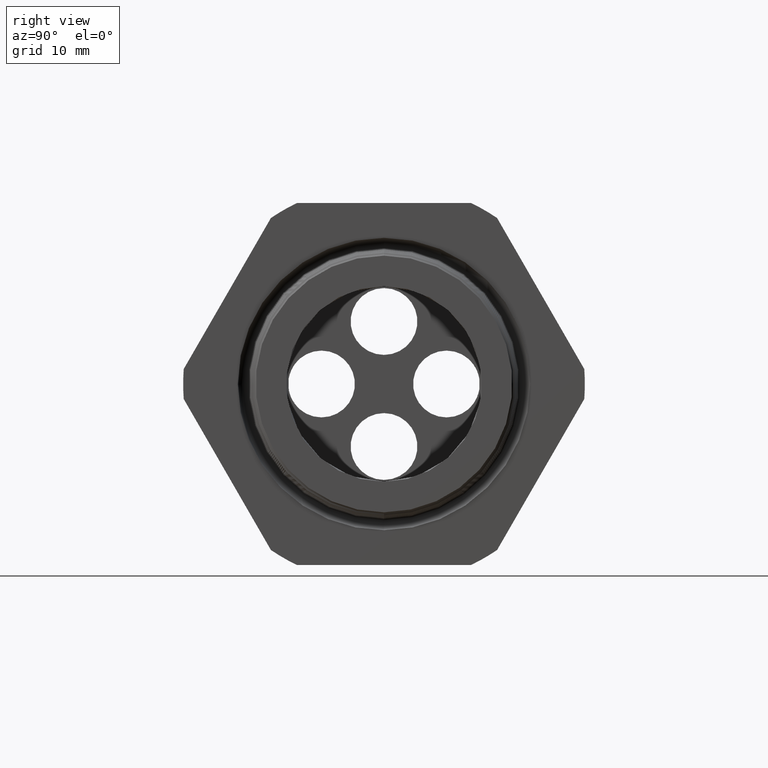
[diagram: clean part render]
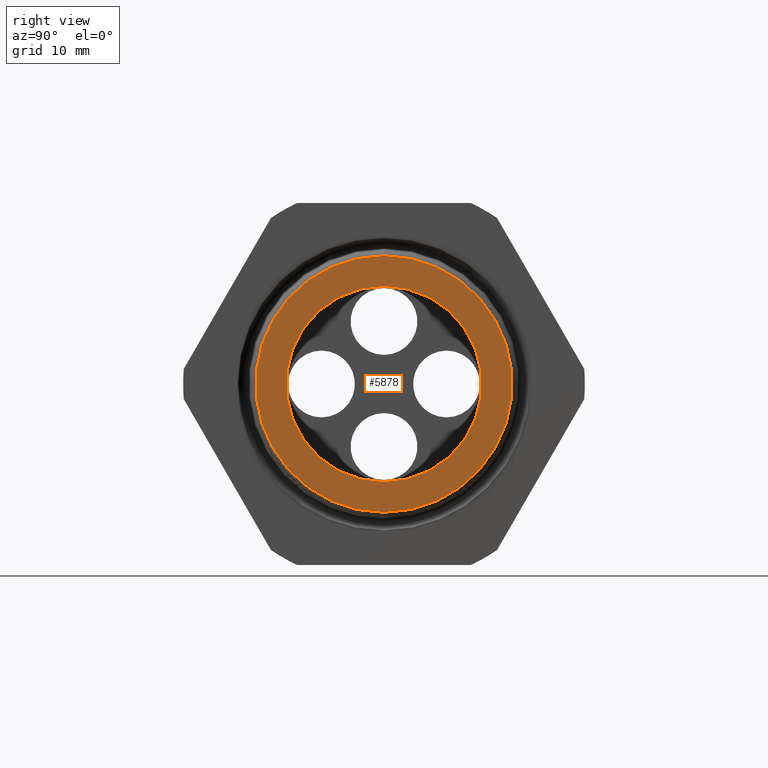
[diagram: same view with one face highlighted and labeled with its STEP entity id]
A machine part, right view. The second image highlights one B-rep face of the part: STEP entity #5878.
In plain terms, the highlighted planar face has unit normal (1, 0, 0).
Its self-contained STEP definition (entity closure, byte-faithful):
#545 = VERTEX_POINT ( 'NONE', #2328 ) ;
#596 = EDGE_CURVE ( 'NONE', #671, #545, #2447, .T. ) ;
#671 = VERTEX_POINT ( 'NONE', #2539 ) ;
#2328 = CARTESIAN_POINT ( 'NONE',  ( 0.2400000000000001000, 0.0000000000000000000, 0.4609698799149832800 ) ) ;
#2443 = DIRECTION ( 'NONE',  ( 0.0000000000000000000, 0.0000000000000000000, -1.000000000000000000 ) ) ;
#2444 = DIRECTION ( 'NONE',  ( 1.000000000000000000, 0.0000000000000000000, 0.0000000000000000000 ) ) ;
#2445 = CARTESIAN_POINT ( 'NONE',  ( 0.2400000000000001000, 0.0000000000000000000, 0.0000000000000000000 ) ) ;
#2446 = AXIS2_PLACEMENT_3D ( 'NONE', #2445, #2444, #2443 ) ;
#2447 = CIRCLE ( 'NONE', #2446, 0.4609698799149832800 ) ;
#2539 = CARTESIAN_POINT ( 'NONE',  ( 0.2400000000000001000, 5.677119249336221900E-017, -0.4609698799149832800 ) ) ;
#3432 = VERTEX_POINT ( 'NONE', #4004 ) ;
#3434 = EDGE_CURVE ( 'NONE', #3436, #3432, #4003, .T. ) ;
#3436 = VERTEX_POINT ( 'NONE', #3998 ) ;
#3998 = CARTESIAN_POINT ( 'NONE',  ( 0.2400000000000001000, 0.0000000000000000000, 0.3513380394677680400 ) ) ;
#3999 = DIRECTION ( 'NONE',  ( 0.0000000000000000000, 0.0000000000000000000, -1.000000000000000000 ) ) ;
#4000 = DIRECTION ( 'NONE',  ( 1.000000000000000000, 0.0000000000000000000, 0.0000000000000000000 ) ) ;
#4001 = CARTESIAN_POINT ( 'NONE',  ( 0.2400000000000001000, 0.0000000000000000000, 0.0000000000000000000 ) ) ;
#4002 = AXIS2_PLACEMENT_3D ( 'NONE', #4001, #4000, #3999 ) ;
#4003 = CIRCLE ( 'NONE', #4002, 0.3513380394677680400 ) ;
#4004 = CARTESIAN_POINT ( 'NONE',  ( 0.2400000000000001000, 4.325073095751094600E-017, -0.3513380394677680400 ) ) ;
#4768 = DIRECTION ( 'NONE',  ( 0.0000000000000000000, 0.0000000000000000000, -1.000000000000000000 ) ) ;
#4769 = DIRECTION ( 'NONE',  ( 1.000000000000000000, 0.0000000000000000000, 0.0000000000000000000 ) ) ;
#4770 = CARTESIAN_POINT ( 'NONE',  ( 0.2400000000000001000, 0.3513380394677680400, 0.0000000000000000000 ) ) ;
#4771 = AXIS2_PLACEMENT_3D ( 'NONE', #4770, #4769, #4768 ) ;
#4772 = PLANE ( 'NONE',  #4771 ) ;
#4774 = FACE_BOUND ( 'NONE', #5861, .T. ) ;
#4775 = FACE_OUTER_BOUND ( 'NONE', #5866, .T. ) ;
#4776 = DIRECTION ( 'NONE',  ( 0.0000000000000000000, 0.0000000000000000000, -1.000000000000000000 ) ) ;
#4777 = DIRECTION ( 'NONE',  ( 1.000000000000000000, 0.0000000000000000000, 0.0000000000000000000 ) ) ;
#4778 = CARTESIAN_POINT ( 'NONE',  ( 0.2400000000000001000, 0.0000000000000000000, 0.0000000000000000000 ) ) ;
#4779 = AXIS2_PLACEMENT_3D ( 'NONE', #4778, #4777, #4776 ) ;
#4780 = CIRCLE ( 'NONE', #4779, 0.4609698799149832800 ) ;
#4819 = DIRECTION ( 'NONE',  ( 0.0000000000000000000, 0.0000000000000000000, -1.000000000000000000 ) ) ;
#4820 = DIRECTION ( 'NONE',  ( 1.000000000000000000, 0.0000000000000000000, 0.0000000000000000000 ) ) ;
#4821 = CARTESIAN_POINT ( 'NONE',  ( 0.2400000000000001000, 0.0000000000000000000, 0.0000000000000000000 ) ) ;
#4822 = AXIS2_PLACEMENT_3D ( 'NONE', #4821, #4820, #4819 ) ;
#4823 = CIRCLE ( 'NONE', #4822, 0.3513380394677680400 ) ;
#5861 = EDGE_LOOP ( 'NONE', ( #5908, #5910 ) ) ;
#5866 = EDGE_LOOP ( 'NONE', ( #5876, #5912 ) ) ;
#5875 = EDGE_CURVE ( 'NONE', #545, #671, #4780, .T. ) ;
#5876 = ORIENTED_EDGE ( 'NONE', *, *, #5875, .T. ) ;
#5878 = ADVANCED_FACE ( 'NONE', ( #4775, #4774 ), #4772, .T. ) ;
#5885 = EDGE_CURVE ( 'NONE', #3432, #3436, #4823, .T. ) ;
#5908 = ORIENTED_EDGE ( 'NONE', *, *, #3434, .F. ) ;
#5910 = ORIENTED_EDGE ( 'NONE', *, *, #5885, .F. ) ;
#5912 = ORIENTED_EDGE ( 'NONE', *, *, #596, .T. ) ;